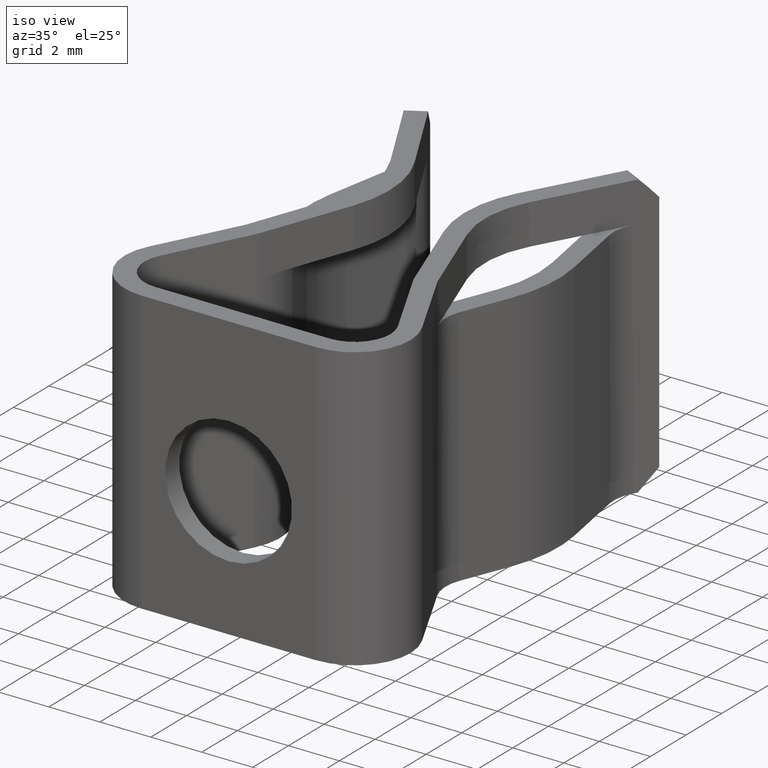
[diagram: clean part render]
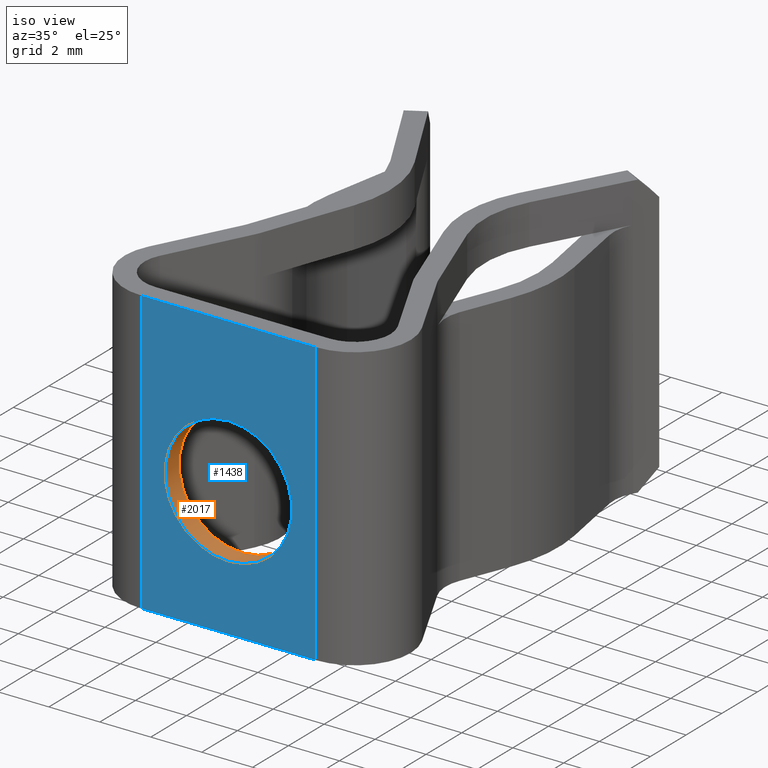
[diagram: same view with the hole feature highlighted: cylindrical wall and planar end face, labeled with their STEP entity ids]
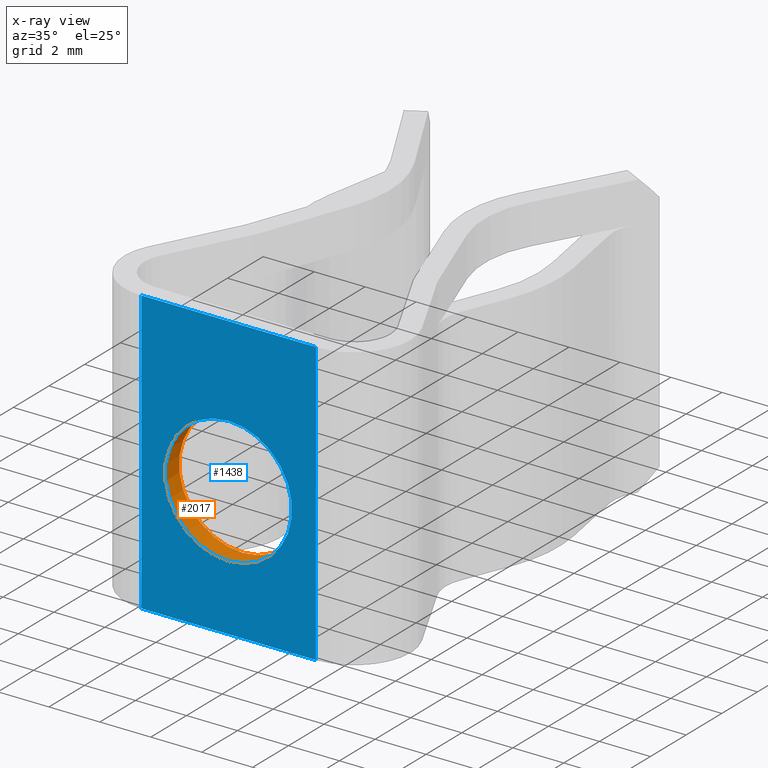
[diagram: x-ray of the same camera — body ghosted, the hole faces saturated]
A machine part, iso view. The highlighted faces form one hole feature of diameter 4.9784 mm: the cylindrical wall (entity #2017, orange) and its adjacent planar end face (entity #1438, blue) — they share a circular edge in the B-rep.
The next image is the same camera in x-ray (body ghosted, the hole faces saturated) — the bore reads through the body.
Wall:
#64 = FACE_OUTER_BOUND ( 'NONE', #401, .T. ) ;
#141 = EDGE_LOOP ( 'NONE', ( #1356 ) ) ;
#164 = EDGE_CURVE ( 'NONE', #337, #337, #2055, .T. ) ;
#180 = CARTESIAN_POINT ( 'NONE',  ( 0.0000000000000000000, 0.0000000000000000000, -0.1750000000000000200 ) ) ;
#205 = DIRECTION ( 'NONE',  ( 0.0000000000000000000, 0.0000000000000000000, 1.000000000000000000 ) ) ;
#308 = EDGE_CURVE ( 'NONE', #1292, #1292, #796, .T. ) ;
#337 = VERTEX_POINT ( 'NONE', #2249 ) ;
#401 = EDGE_LOOP ( 'NONE', ( #2306 ) ) ;
#404 = DIRECTION ( 'NONE',  ( 0.0000000000000000000, 0.0000000000000000000, 1.000000000000000000 ) ) ;
#414 = DIRECTION ( 'NONE',  ( 0.0000000000000000000, 0.0000000000000000000, 1.000000000000000000 ) ) ;
#419 = FACE_OUTER_BOUND ( 'NONE', #141, .T. ) ;
#772 = AXIS2_PLACEMENT_3D ( 'NONE', #1351, #1730, #404 ) ;
#784 = AXIS2_PLACEMENT_3D ( 'NONE', #1149, #1746, #205 ) ;
#796 = CIRCLE ( 'NONE', #1681, 0.09800000000000000400 ) ;
#1149 = CARTESIAN_POINT ( 'NONE',  ( 0.0000000000000000000, -0.03100000000000001700, -0.1750000000000000200 ) ) ;
#1292 = VERTEX_POINT ( 'NONE', #1887 ) ;
#1351 = CARTESIAN_POINT ( 'NONE',  ( 0.0000000000000000000, -0.03100000000000001700, -0.1750000000000000200 ) ) ;
#1356 = ORIENTED_EDGE ( 'NONE', *, *, #164, .F. ) ;
#1359 = CYLINDRICAL_SURFACE ( 'NONE', #772, 0.09800000000000000400 ) ;
#1569 = DIRECTION ( 'NONE',  ( 0.0000000000000000000, 1.000000000000000000, 0.0000000000000000000 ) ) ;
#1681 = AXIS2_PLACEMENT_3D ( 'NONE', #180, #1569, #414 ) ;
#1730 = DIRECTION ( 'NONE',  ( -0.0000000000000000000, 1.000000000000000000, -0.0000000000000000000 ) ) ;
#1746 = DIRECTION ( 'NONE',  ( 0.0000000000000000000, 1.000000000000000000, 0.0000000000000000000 ) ) ;
#1887 = CARTESIAN_POINT ( 'NONE',  ( 0.0000000000000000000, 0.0000000000000000000, -0.07700000000000001300 ) ) ;
#2017 = ADVANCED_FACE ( 'NONE', ( #419, #64 ), #1359, .F. ) ;
#2055 = CIRCLE ( 'NONE', #784, 0.09800000000000000400 ) ;
#2249 = CARTESIAN_POINT ( 'NONE',  ( 0.0000000000000000000, -0.03100000000000001700, -0.07700000000000001300 ) ) ;
#2306 = ORIENTED_EDGE ( 'NONE', *, *, #308, .T. ) ;
End face:
#66 = CARTESIAN_POINT ( 'NONE',  ( 0.1348468300000000300, -0.03100000000000000000, 0.06200000000000000000 ) ) ;
#68 = VECTOR ( 'NONE', #2046, 39.37007874015748100 ) ;
#104 = DIRECTION ( 'NONE',  ( 0.0000000000000000000, -0.0000000000000000000, -1.000000000000000000 ) ) ;
#128 = ORIENTED_EDGE ( 'NONE', *, *, #1802, .T. ) ;
#164 = EDGE_CURVE ( 'NONE', #337, #337, #2055, .T. ) ;
#182 = LINE ( 'NONE', #1028, #1655 ) ;
#205 = DIRECTION ( 'NONE',  ( 0.0000000000000000000, 0.0000000000000000000, 1.000000000000000000 ) ) ;
#304 = ORIENTED_EDGE ( 'NONE', *, *, #2381, .F. ) ;
#309 = FACE_BOUND ( 'NONE', #1105, .T. ) ;
#337 = VERTEX_POINT ( 'NONE', #2249 ) ;
#392 = LINE ( 'NONE', #777, #786 ) ;
#402 = CARTESIAN_POINT ( 'NONE',  ( 0.1348468299999999700, -0.03100000000000001700, -0.3750000000000000600 ) ) ;
#441 = EDGE_LOOP ( 'NONE', ( #2312, #304, #563, #128 ) ) ;
#563 = ORIENTED_EDGE ( 'NONE', *, *, #710, .F. ) ;
#693 = DIRECTION ( 'NONE',  ( 0.0000000000000000000, 0.0000000000000000000, 1.000000000000000000 ) ) ;
#710 = EDGE_CURVE ( 'NONE', #1340, #2445, #392, .T. ) ;
#713 = CARTESIAN_POINT ( 'NONE',  ( -0.1348468300000000300, -0.03100000000000000000, 0.06200000000000000000 ) ) ;
#777 = CARTESIAN_POINT ( 'NONE',  ( -0.1348468299999999700, -0.03100000000000000000, -0.3750000000000000600 ) ) ;
#784 = AXIS2_PLACEMENT_3D ( 'NONE', #1149, #1746, #205 ) ;
#786 = VECTOR ( 'NONE', #2262, 39.37007874015748100 ) ;
#836 = VERTEX_POINT ( 'NONE', #402 ) ;
#962 = EDGE_CURVE ( 'NONE', #836, #2214, #182, .T. ) ;
#1028 = CARTESIAN_POINT ( 'NONE',  ( 0.1348468299999999700, -0.03100000000000001700, -0.3750000000000000600 ) ) ;
#1044 = DIRECTION ( 'NONE',  ( 1.000000000000000000, 0.0000000000000000000, 0.0000000000000000000 ) ) ;
#1067 = CARTESIAN_POINT ( 'NONE',  ( -0.1348468299999999700, -0.03100000000000000000, -0.3750000000000000600 ) ) ;
#1105 = EDGE_LOOP ( 'NONE', ( #1789 ) ) ;
#1149 = CARTESIAN_POINT ( 'NONE',  ( 0.0000000000000000000, -0.03100000000000001700, -0.1750000000000000200 ) ) ;
#1238 = PLANE ( 'NONE',  #1557 ) ;
#1243 = DIRECTION ( 'NONE',  ( 0.0000000000000000000, -1.000000000000000000, 0.0000000000000000000 ) ) ;
#1322 = VECTOR ( 'NONE', #1044, 39.37007874015748100 ) ;
#1340 = VERTEX_POINT ( 'NONE', #1796 ) ;
#1438 = ADVANCED_FACE ( 'NONE', ( #309, #1777 ), #1238, .T. ) ;
#1550 = LINE ( 'NONE', #713, #68 ) ;
#1557 = AXIS2_PLACEMENT_3D ( 'NONE', #1067, #1243, #104 ) ;
#1655 = VECTOR ( 'NONE', #693, 39.37007874015748100 ) ;
#1746 = DIRECTION ( 'NONE',  ( 0.0000000000000000000, 1.000000000000000000, 0.0000000000000000000 ) ) ;
#1777 = FACE_OUTER_BOUND ( 'NONE', #441, .T. ) ;
#1789 = ORIENTED_EDGE ( 'NONE', *, *, #164, .T. ) ;
#1796 = CARTESIAN_POINT ( 'NONE',  ( -0.1348468300000000000, -0.03099999999999998900, -0.3750000000000000600 ) ) ;
#1802 = EDGE_CURVE ( 'NONE', #1340, #836, #1831, .T. ) ;
#1831 = LINE ( 'NONE', #2300, #1322 ) ;
#2046 = DIRECTION ( 'NONE',  ( 1.000000000000000000, 0.0000000000000000000, 0.0000000000000000000 ) ) ;
#2055 = CIRCLE ( 'NONE', #784, 0.09800000000000000400 ) ;
#2214 = VERTEX_POINT ( 'NONE', #66 ) ;
#2249 = CARTESIAN_POINT ( 'NONE',  ( 0.0000000000000000000, -0.03100000000000001700, -0.07700000000000001300 ) ) ;
#2262 = DIRECTION ( 'NONE',  ( 0.0000000000000000000, 0.0000000000000000000, 1.000000000000000000 ) ) ;
#2300 = CARTESIAN_POINT ( 'NONE',  ( -0.1348468299999999700, -0.03100000000000000000, -0.3750000000000000600 ) ) ;
#2312 = ORIENTED_EDGE ( 'NONE', *, *, #962, .T. ) ;
#2381 = EDGE_CURVE ( 'NONE', #2445, #2214, #1550, .T. ) ;
#2440 = CARTESIAN_POINT ( 'NONE',  ( -0.1348468300000000000, -0.03100000000000000000, 0.06200000000000000000 ) ) ;
#2445 = VERTEX_POINT ( 'NONE', #2440 ) ;